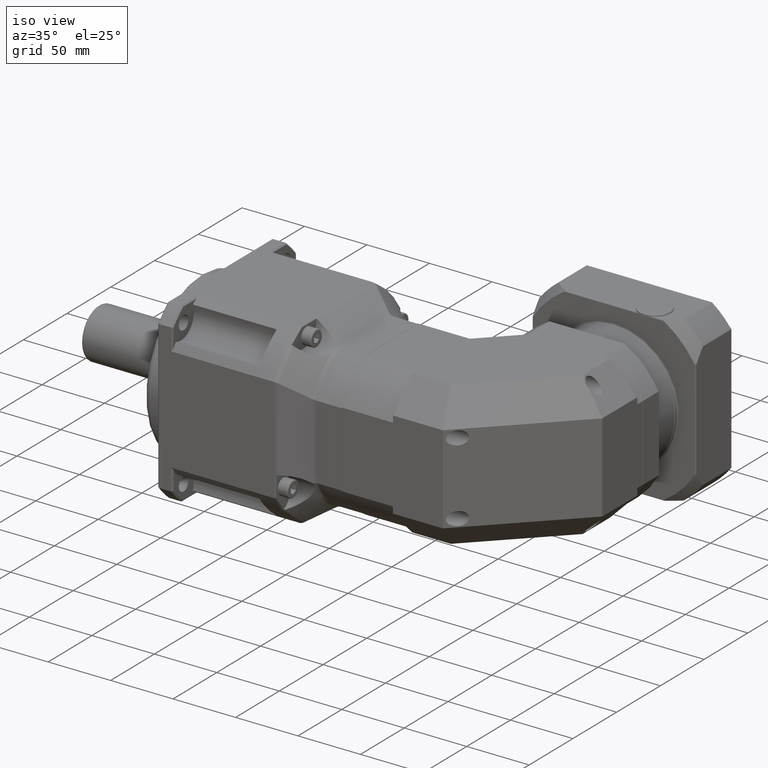
[diagram: clean part render]
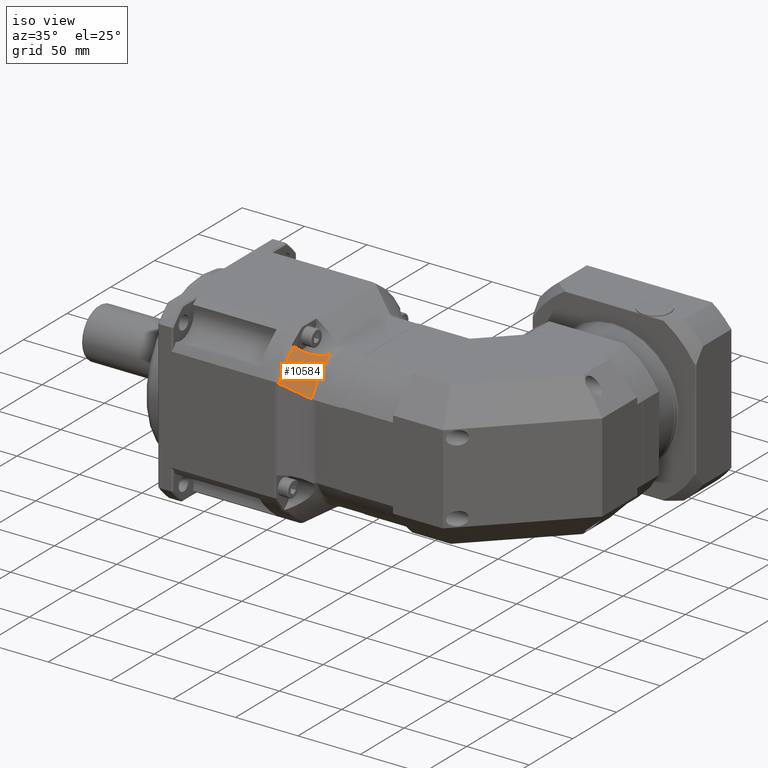
[diagram: same view with one face highlighted and labeled with its STEP entity id]
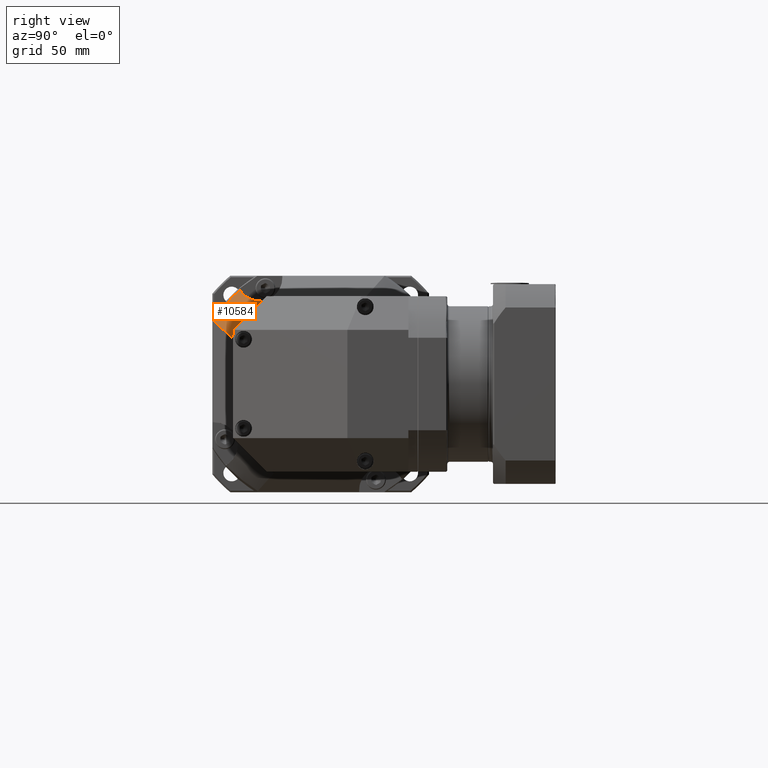
[diagram: same view with one face highlighted and labeled with its STEP entity id]
A machine part, iso view. The second image highlights one B-rep face of the part: STEP entity #10584.
A second angle (right view) of the same face is appended — the face is thin or edge-on in the first view.
In plain terms, the highlighted face is a freeform B-spline surface patch.
Its self-contained STEP definition (entity closure, byte-faithful):
#16=B_SPLINE_SURFACE_WITH_KNOTS('',3,3,((#17910,#17911,#17912,#17913),(#17914,
#17915,#17916,#17917),(#17918,#17919,#17920,#17921),(#17922,#17923,#17924,
#17925),(#17926,#17927,#17928,#17929)),.UNSPECIFIED.,.F.,.F.,.F.,(4,1,4),
(4,4),(0.,0.356139318412054,0.830991742961461),(0.0665513149751303,0.933568387707799),
 .UNSPECIFIED.);
#159=B_SPLINE_CURVE_WITH_KNOTS('',3,(#17932,#17933,#17934,#17935,#17936),
 .UNSPECIFIED.,.F.,.F.,(4,1,4),(-3.51225178888097,-2.4198505748998,-1.92211268305419E-15),
 .UNSPECIFIED.);
#160=B_SPLINE_CURVE_WITH_KNOTS('',3,(#17938,#17939,#17940,#17941,#17942,
#17943,#17944,#17945,#17946,#17947),.UNSPECIFIED.,.F.,.F.,(4,2,2,2,4),(-3.17043196880341,
-3.0971788136667,-2.44696304213039,-1.3633293079808,-0.184787416691171),
 .UNSPECIFIED.);
#161=B_SPLINE_CURVE_WITH_KNOTS('',3,(#17949,#17950,#17951,#17952,#17953),
 .UNSPECIFIED.,.F.,.F.,(4,1,4),(-3.93745531475317,-2.253483935037,-1.37732270200572),
 .UNSPECIFIED.);
#850=LINE('',#17954,#1378);
#1378=VECTOR('',#14173,24.105594712999);
#2756=FACE_OUTER_BOUND('',#3734,.T.);
#3734=EDGE_LOOP('',(#8513,#8514,#8515,#8516));
#5181=VERTEX_POINT('',#17930);
#5182=VERTEX_POINT('',#17931);
#5183=VERTEX_POINT('',#17937);
#5184=VERTEX_POINT('',#17948);
#6358=EDGE_CURVE('',#5181,#5182,#159,.T.);
#6359=EDGE_CURVE('',#5181,#5183,#160,.T.);
#6360=EDGE_CURVE('',#5184,#5183,#161,.T.);
#6361=EDGE_CURVE('',#5184,#5182,#850,.T.);
#8513=ORIENTED_EDGE('',*,*,#6358,.F.);
#8514=ORIENTED_EDGE('',*,*,#6359,.T.);
#8515=ORIENTED_EDGE('',*,*,#6360,.F.);
#8516=ORIENTED_EDGE('',*,*,#6361,.T.);
#10584=ADVANCED_FACE('',(#2756),#16,.F.);
#14173=DIRECTION('',(0.755238106831922,0.485510211534804,-0.440335368196066));
#17910=CARTESIAN_POINT('Ctrl Pts',(-126.834835569893,-19.4597247912825,
-72.8277478090162));
#17911=CARTESIAN_POINT('Ctrl Pts',(-120.765716060765,-15.5581479639856,
-76.3662980351012));
#17912=CARTESIAN_POINT('Ctrl Pts',(-114.696596551636,-11.6565711366886,
-79.9048482611862));
#17913=CARTESIAN_POINT('Ctrl Pts',(-108.627477042507,-7.75499430939159,
-83.4433984872712));
#17914=CARTESIAN_POINT('Ctrl Pts',(-126.834835569893,-16.9772416036054,
-68.5977004814979));
#17915=CARTESIAN_POINT('Ctrl Pts',(-120.765716060765,-13.171043330023,-72.1455611047491));
#17916=CARTESIAN_POINT('Ctrl Pts',(-114.696596551636,-9.36470622576201,
-75.693407415306));
#17917=CARTESIAN_POINT('Ctrl Pts',(-108.627477042507,-5.5585079521796,-79.2412680385573));
#17918=CARTESIAN_POINT('Ctrl Pts',(-126.834835569893,-10.2870965258374,
-59.253298754351));
#17919=CARTESIAN_POINT('Ctrl Pts',(-120.765716060765,-6.6476233176648,-62.8327466078494));
#17920=CARTESIAN_POINT('Ctrl Pts',(-114.696596551636,-3.00833851031999,
-66.4119860573465));
#17921=CARTESIAN_POINT('Ctrl Pts',(-108.627477042507,0.631134697852616,
-69.9914339108449));
#17922=CARTESIAN_POINT('Ctrl Pts',(-126.834835569893,-1.75595080623596,
-51.498138035187));
#17923=CARTESIAN_POINT('Ctrl Pts',(-120.765716060765,1.81991893225547,-55.1809063127472));
#17924=CARTESIAN_POINT('Ctrl Pts',(-114.696596551636,5.39638211892153,-58.8643993685787));
#17925=CARTESIAN_POINT('Ctrl Pts',(-108.627477042507,8.97225185741295,-62.5471676461389));
#17926=CARTESIAN_POINT('Ctrl Pts',(-126.834835569893,3.57891311466593,-47.7152675522832));
#17927=CARTESIAN_POINT('Ctrl Pts',(-120.765716060765,7.13451720136676,-51.4966751600147));
#17928=CARTESIAN_POINT('Ctrl Pts',(-114.696596551636,10.6901212880676,-55.2780827677463));
#17929=CARTESIAN_POINT('Ctrl Pts',(-108.627477042507,14.2457253747684,-59.0594903754778));
#17930=CARTESIAN_POINT('',(-108.628935568262,14.2448708949503,-59.0585816307453));
#17931=CARTESIAN_POINT('',(-108.627477042507,-7.75499430939158,-83.4433984872712));
#17932=CARTESIAN_POINT('Ctrl Pts',(-108.628935950822,14.2448870884954,-59.0589860605007));
#17933=CARTESIAN_POINT('Ctrl Pts',(-108.629524353078,11.3740874847069,-60.9569537009992));
#17934=CARTESIAN_POINT('Ctrl Pts',(-108.630660102929,2.62166263087188,-67.7828400597089));
#17935=CARTESIAN_POINT('Ctrl Pts',(-108.629471831464,-4.22521669346793,
-76.6877363762169));
#17936=CARTESIAN_POINT('Ctrl Pts',(-108.627477052053,-7.75498795512894,
-83.4434027970932));
#17937=CARTESIAN_POINT('',(-126.834599727107,-2.30704535203209,-52.3105110235098));
#17938=CARTESIAN_POINT('Ctrl Pts',(-108.628935568262,14.2448708949503,-59.0585816307452));
#17939=CARTESIAN_POINT('Ctrl Pts',(-108.698218387097,14.0719084163169,-59.1029615375863));
#17940=CARTESIAN_POINT('Ctrl Pts',(-108.771341801735,13.8993728859199,-59.1439399334603));
#17941=CARTESIAN_POINT('Ctrl Pts',(-109.528881958275,12.2009134357852,-59.5160990918377));
#17942=CARTESIAN_POINT('Ctrl Pts',(-110.483544895419,10.7333565854195,-59.5879946473158));
#17943=CARTESIAN_POINT('Ctrl Pts',(-113.292733088655,7.15307216683642,-59.3184432787235));
#17944=CARTESIAN_POINT('Ctrl Pts',(-115.558793257903,4.96255039262991,-58.6473894933756));
#17945=CARTESIAN_POINT('Ctrl Pts',(-120.842937756964,0.8549672075626,-56.2666251911939));
#17946=CARTESIAN_POINT('Ctrl Pts',(-123.85589931588,-0.982718931235572,
-54.4930597438216));
#17947=CARTESIAN_POINT('Ctrl Pts',(-126.834599727107,-2.30704535203209,
-52.3105110235098));
#17948=CARTESIAN_POINT('',(-126.83294075761,-19.458506697672,-72.8288525637377));
#17949=CARTESIAN_POINT('Ctrl Pts',(-126.83294075761,-19.458506697672,-72.8288525637377));
#17950=CARTESIAN_POINT('Ctrl Pts',(-126.833971593536,-16.4781204942052,
-67.7486117487061));
#17951=CARTESIAN_POINT('Ctrl Pts',(-126.834891114219,-11.1023410675804,
-60.5193959783373));
#17952=CARTESIAN_POINT('Ctrl Pts',(-126.834762306684,-4.63294410619193,
-54.3065052778964));
#17953=CARTESIAN_POINT('Ctrl Pts',(-126.834597939577,-2.30617508087887,
-52.3117291522966));
#17954=CARTESIAN_POINT('',(-128.232413184371,-20.3581675434468,-72.0129016725638));